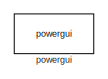
[diagram: root canvas - part 1/8, top left region]
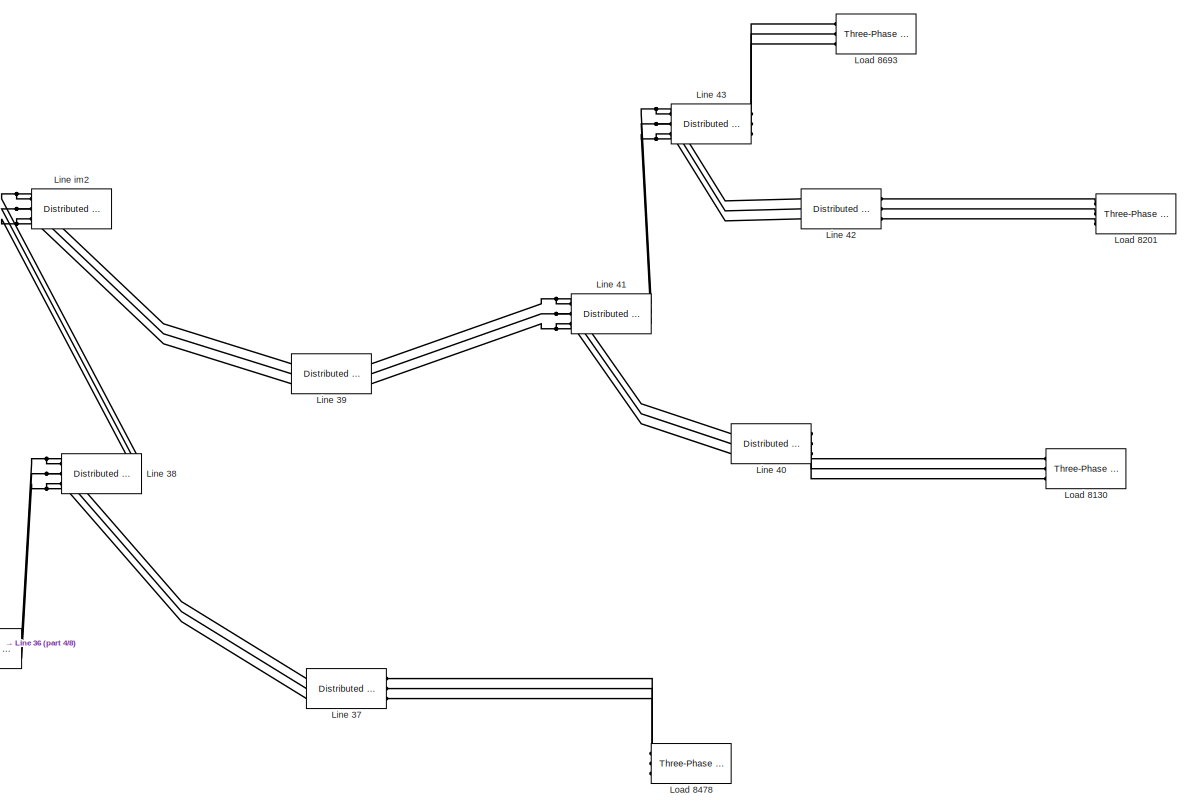
[diagram: root canvas - part 2/8, top center region]
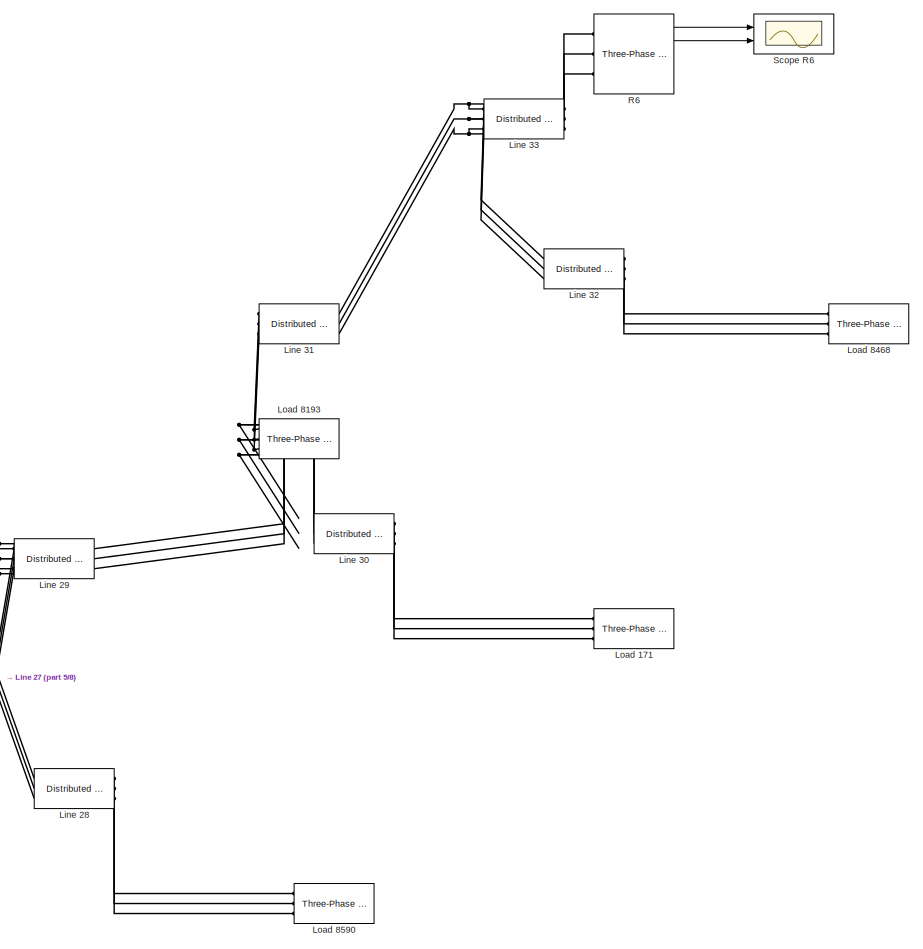
[diagram: root canvas - part 3/8, middle right region]
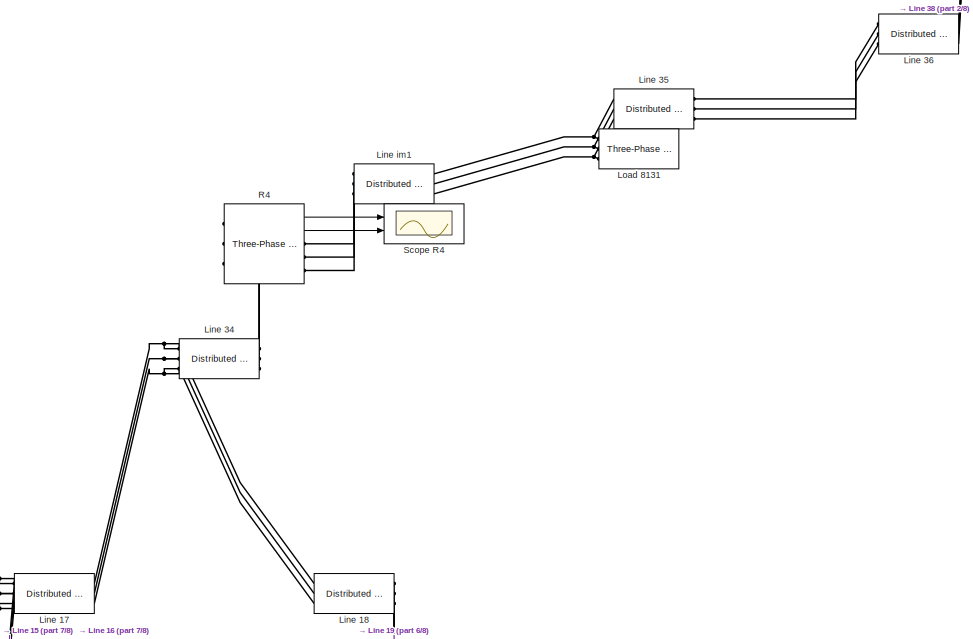
[diagram: root canvas - part 4/8, central region]
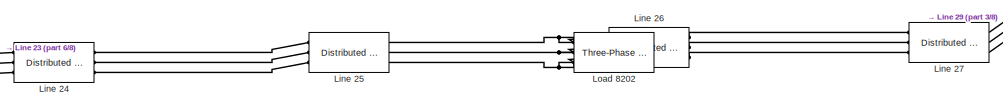
[diagram: root canvas - part 5/8, middle right region]
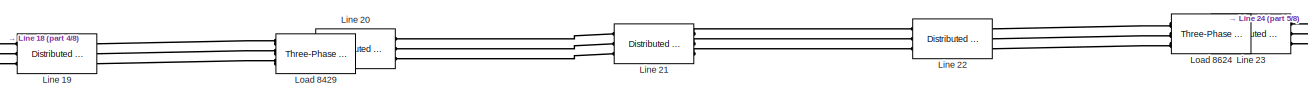
[diagram: root canvas - part 6/8, central region]
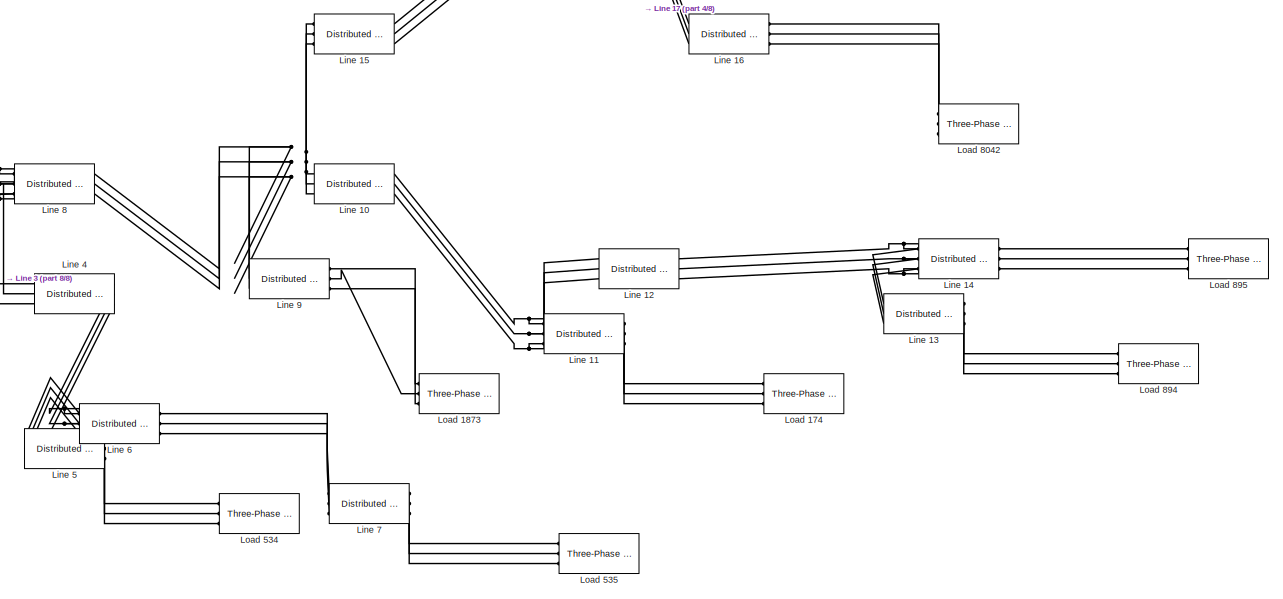
[diagram: root canvas - part 7/8, bottom left region]
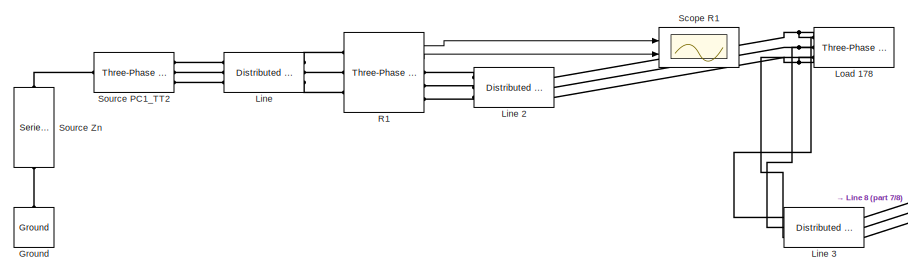
[diagram: root canvas - part 8/8, bottom left region]
MODEL slx_b86a20e5045c
KIND model
CONFIG AbsTol = auto
CONFIG EnableMultiTasking = off
CONFIG FixedStep = 0.2
CONFIG MaxStep = auto
CONFIG MinStep = auto
CONFIG RelTol = 1e-3
CONFIG SampleTimeConstraint = Unconstrained
CONFIG SolverName = FixedStepAuto
CONFIG StartTime = 0
CONFIG StopTime = 0.2
BLOCK [Reference] Ground  REF=spsGroundLib/Ground
  NameLocation = right
  Ports = [0, 0, 0, 0, 0, 1]
  SourceBlock = spsGroundLib/Ground
  SourceProductBaseCode = PS
  SourceType = Ground
BLOCK [Reference] Line  REF=spsDistributedParametersLineLib/Distributed Parameters Line
  Ports = [0, 0, 0, 0, 0, 3, 3]
  SourceBlock = spsDistributedParametersLineLib/Distributed Parameters Line
  SourceProductBaseCode = PS
  SourceType = Distributed Parameters Line
BLOCK [Reference] Line 10  REF=spsDistributedParametersLineLib/Distributed Parameters Line
  Ports = [0, 0, 0, 0, 0, 3, 3]
  SourceBlock = spsDistributedParametersLineLib/Distributed Parameters Line
  SourceProductBaseCode = PS
  SourceType = Distributed Parameters Line
BLOCK [Reference] Line 11  REF=spsDistributedParametersLineLib/Distributed Parameters Line
  Ports = [0, 0, 0, 0, 0, 3, 3]
  SourceBlock = spsDistributedParametersLineLib/Distributed Parameters Line
  SourceProductBaseCode = PS
  SourceType = Distributed Parameters Line
BLOCK [Reference] Line 12  REF=spsDistributedParametersLineLib/Distributed Parameters Line
  Ports = [0, 0, 0, 0, 0, 3, 3]
  SourceBlock = spsDistributedParametersLineLib/Distributed Parameters Line
  SourceProductBaseCode = PS
  SourceType = Distributed Parameters Line
BLOCK [Reference] Line 13  REF=spsDistributedParametersLineLib/Distributed Parameters Line
  Ports = [0, 0, 0, 0, 0, 3, 3]
  SourceBlock = spsDistributedParametersLineLib/Distributed Parameters Line
  SourceProductBaseCode = PS
  SourceType = Distributed Parameters Line
BLOCK [Reference] Line 14  REF=spsDistributedParametersLineLib/Distributed Parameters Line
  Ports = [0, 0, 0, 0, 0, 3, 3]
  SourceBlock = spsDistributedParametersLineLib/Distributed Parameters Line
  SourceProductBaseCode = PS
  SourceType = Distributed Parameters Line
BLOCK [Reference] Line 15  REF=spsDistributedParametersLineLib/Distributed Parameters Line
  Ports = [0, 0, 0, 0, 0, 3, 3]
  SourceBlock = spsDistributedParametersLineLib/Distributed Parameters Line
  SourceProductBaseCode = PS
  SourceType = Distributed Parameters Line
BLOCK [Reference] Line 16  REF=spsDistributedParametersLineLib/Distributed Parameters Line
  Ports = [0, 0, 0, 0, 0, 3, 3]
  SourceBlock = spsDistributedParametersLineLib/Distributed Parameters Line
  SourceProductBaseCode = PS
  SourceType = Distributed Parameters Line
BLOCK [Reference] Line 17  REF=spsDistributedParametersLineLib/Distributed Parameters Line
  Ports = [0, 0, 0, 0, 0, 3, 3]
  SourceBlock = spsDistributedParametersLineLib/Distributed Parameters Line
  SourceProductBaseCode = PS
  SourceType = Distributed Parameters Line
BLOCK [Reference] Line 18  REF=spsDistributedParametersLineLib/Distributed Parameters Line
  Ports = [0, 0, 0, 0, 0, 3, 3]
  SourceBlock = spsDistributedParametersLineLib/Distributed Parameters Line
  SourceProductBaseCode = PS
  SourceType = Distributed Parameters Line
BLOCK [Reference] Line 19  REF=spsDistributedParametersLineLib/Distributed Parameters Line
  Ports = [0, 0, 0, 0, 0, 3, 3]
  SourceBlock = spsDistributedParametersLineLib/Distributed Parameters Line
  SourceProductBaseCode = PS
  SourceType = Distributed Parameters Line
BLOCK [Reference] Line 2  REF=spsDistributedParametersLineLib/Distributed Parameters Line
  Ports = [0, 0, 0, 0, 0, 3, 3]
  SourceBlock = spsDistributedParametersLineLib/Distributed Parameters Line
  SourceProductBaseCode = PS
  SourceType = Distributed Parameters Line
BLOCK [Reference] Line 20  REF=spsDistributedParametersLineLib/Distributed Parameters Line
  Ports = [0, 0, 0, 0, 0, 3, 3]
  SourceBlock = spsDistributedParametersLineLib/Distributed Parameters Line
  SourceProductBaseCode = PS
  SourceType = Distributed Parameters Line
BLOCK [Reference] Line 21  REF=spsDistributedParametersLineLib/Distributed Parameters Line
  Ports = [0, 0, 0, 0, 0, 3, 3]
  SourceBlock = spsDistributedParametersLineLib/Distributed Parameters Line
  SourceProductBaseCode = PS
  SourceType = Distributed Parameters Line
BLOCK [Reference] Line 22  REF=spsDistributedParametersLineLib/Distributed Parameters Line
  Ports = [0, 0, 0, 0, 0, 3, 3]
  SourceBlock = spsDistributedParametersLineLib/Distributed Parameters Line
  SourceProductBaseCode = PS
  SourceType = Distributed Parameters Line
BLOCK [Reference] Line 23  REF=spsDistributedParametersLineLib/Distributed Parameters Line
  Ports = [0, 0, 0, 0, 0, 3, 3]
  SourceBlock = spsDistributedParametersLineLib/Distributed Parameters Line
  SourceProductBaseCode = PS
  SourceType = Distributed Parameters Line
BLOCK [Reference] Line 24  REF=spsDistributedParametersLineLib/Distributed Parameters Line
  Ports = [0, 0, 0, 0, 0, 3, 3]
  SourceBlock = spsDistributedParametersLineLib/Distributed Parameters Line
  SourceProductBaseCode = PS
  SourceType = Distributed Parameters Line
BLOCK [Reference] Line 25  REF=spsDistributedParametersLineLib/Distributed Parameters Line
  Ports = [0, 0, 0, 0, 0, 3, 3]
  SourceBlock = spsDistributedParametersLineLib/Distributed Parameters Line
  SourceProductBaseCode = PS
  SourceType = Distributed Parameters Line
BLOCK [Reference] Line 26  REF=spsDistributedParametersLineLib/Distributed Parameters Line
  Ports = [0, 0, 0, 0, 0, 3, 3]
  SourceBlock = spsDistributedParametersLineLib/Distributed Parameters Line
  SourceProductBaseCode = PS
  SourceType = Distributed Parameters Line
BLOCK [Reference] Line 27  REF=spsDistributedParametersLineLib/Distributed Parameters Line
  Ports = [0, 0, 0, 0, 0, 3, 3]
  SourceBlock = spsDistributedParametersLineLib/Distributed Parameters Line
  SourceProductBaseCode = PS
  SourceType = Distributed Parameters Line
BLOCK [Reference] Line 28  REF=spsDistributedParametersLineLib/Distributed Parameters Line
  Ports = [0, 0, 0, 0, 0, 3, 3]
  SourceBlock = spsDistributedParametersLineLib/Distributed Parameters Line
  SourceProductBaseCode = PS
  SourceType = Distributed Parameters Line
BLOCK [Reference] Line 29  REF=spsDistributedParametersLineLib/Distributed Parameters Line
  Ports = [0, 0, 0, 0, 0, 3, 3]
  SourceBlock = spsDistributedParametersLineLib/Distributed Parameters Line
  SourceProductBaseCode = PS
  SourceType = Distributed Parameters Line
BLOCK [Reference] Line 3  REF=spsDistributedParametersLineLib/Distributed Parameters Line
  Ports = [0, 0, 0, 0, 0, 3, 3]
  SourceBlock = spsDistributedParametersLineLib/Distributed Parameters Line
  SourceProductBaseCode = PS
  SourceType = Distributed Parameters Line
BLOCK [Reference] Line 30  REF=spsDistributedParametersLineLib/Distributed Parameters Line
  Ports = [0, 0, 0, 0, 0, 3, 3]
  SourceBlock = spsDistributedParametersLineLib/Distributed Parameters Line
  SourceProductBaseCode = PS
  SourceType = Distributed Parameters Line
BLOCK [Reference] Line 31  REF=spsDistributedParametersLineLib/Distributed Parameters Line
  Ports = [0, 0, 0, 0, 0, 3, 3]
  SourceBlock = spsDistributedParametersLineLib/Distributed Parameters Line
  SourceProductBaseCode = PS
  SourceType = Distributed Parameters Line
BLOCK [Reference] Line 32  REF=spsDistributedParametersLineLib/Distributed Parameters Line
  Ports = [0, 0, 0, 0, 0, 3, 3]
  SourceBlock = spsDistributedParametersLineLib/Distributed Parameters Line
  SourceProductBaseCode = PS
  SourceType = Distributed Parameters Line
BLOCK [Reference] Line 33  REF=spsDistributedParametersLineLib/Distributed Parameters Line
  Ports = [0, 0, 0, 0, 0, 3, 3]
  SourceBlock = spsDistributedParametersLineLib/Distributed Parameters Line
  SourceProductBaseCode = PS
  SourceType = Distributed Parameters Line
BLOCK [Reference] Line 34  REF=spsDistributedParametersLineLib/Distributed Parameters Line
  Ports = [0, 0, 0, 0, 0, 3, 3]
  SourceBlock = spsDistributedParametersLineLib/Distributed Parameters Line
  SourceProductBaseCode = PS
  SourceType = Distributed Parameters Line
BLOCK [Reference] Line 35  REF=spsDistributedParametersLineLib/Distributed Parameters Line
  Ports = [0, 0, 0, 0, 0, 3, 3]
  SourceBlock = spsDistributedParametersLineLib/Distributed Parameters Line
  SourceProductBaseCode = PS
  SourceType = Distributed Parameters Line
BLOCK [Reference] Line 36  REF=spsDistributedParametersLineLib/Distributed Parameters Line
  Ports = [0, 0, 0, 0, 0, 3, 3]
  SourceBlock = spsDistributedParametersLineLib/Distributed Parameters Line
  SourceProductBaseCode = PS
  SourceType = Distributed Parameters Line
BLOCK [Reference] Line 37  REF=spsDistributedParametersLineLib/Distributed Parameters Line
  Ports = [0, 0, 0, 0, 0, 3, 3]
  SourceBlock = spsDistributedParametersLineLib/Distributed Parameters Line
  SourceProductBaseCode = PS
  SourceType = Distributed Parameters Line
BLOCK [Reference] Line 38  REF=spsDistributedParametersLineLib/Distributed Parameters Line
  Ports = [0, 0, 0, 0, 0, 3, 3]
  SourceBlock = spsDistributedParametersLineLib/Distributed Parameters Line
  SourceProductBaseCode = PS
  SourceType = Distributed Parameters Line
BLOCK [Reference] Line 39  REF=spsDistributedParametersLineLib/Distributed Parameters Line
  Ports = [0, 0, 0, 0, 0, 3, 3]
  SourceBlock = spsDistributedParametersLineLib/Distributed Parameters Line
  SourceProductBaseCode = PS
  SourceType = Distributed Parameters Line
BLOCK [Reference] Line 4  REF=spsDistributedParametersLineLib/Distributed Parameters Line
  Ports = [0, 0, 0, 0, 0, 3, 3]
  SourceBlock = spsDistributedParametersLineLib/Distributed Parameters Line
  SourceProductBaseCode = PS
  SourceType = Distributed Parameters Line
BLOCK [Reference] Line 40  REF=spsDistributedParametersLineLib/Distributed Parameters Line
  Ports = [0, 0, 0, 0, 0, 3, 3]
  SourceBlock = spsDistributedParametersLineLib/Distributed Parameters Line
  SourceProductBaseCode = PS
  SourceType = Distributed Parameters Line
BLOCK [Reference] Line 41  REF=spsDistributedParametersLineLib/Distributed Parameters Line
  Ports = [0, 0, 0, 0, 0, 3, 3]
  SourceBlock = spsDistributedParametersLineLib/Distributed Parameters Line
  SourceProductBaseCode = PS
  SourceType = Distributed Parameters Line
BLOCK [Reference] Line 42  REF=spsDistributedParametersLineLib/Distributed Parameters Line
  Ports = [0, 0, 0, 0, 0, 3, 3]
  SourceBlock = spsDistributedParametersLineLib/Distributed Parameters Line
  SourceProductBaseCode = PS
  SourceType = Distributed Parameters Line
BLOCK [Reference] Line 43  REF=spsDistributedParametersLineLib/Distributed Parameters Line
  Ports = [0, 0, 0, 0, 0, 3, 3]
  SourceBlock = spsDistributedParametersLineLib/Distributed Parameters Line
  SourceProductBaseCode = PS
  SourceType = Distributed Parameters Line
BLOCK [Reference] Line 5  REF=spsDistributedParametersLineLib/Distributed Parameters Line
  Ports = [0, 0, 0, 0, 0, 3, 3]
  SourceBlock = spsDistributedParametersLineLib/Distributed Parameters Line
  SourceProductBaseCode = PS
  SourceType = Distributed Parameters Line
BLOCK [Reference] Line 6  REF=spsDistributedParametersLineLib/Distributed Parameters Line
  Ports = [0, 0, 0, 0, 0, 3, 3]
  SourceBlock = spsDistributedParametersLineLib/Distributed Parameters Line
  SourceProductBaseCode = PS
  SourceType = Distributed Parameters Line
BLOCK [Reference] Line 7  REF=spsDistributedParametersLineLib/Distributed Parameters Line
  Ports = [0, 0, 0, 0, 0, 3, 3]
  SourceBlock = spsDistributedParametersLineLib/Distributed Parameters Line
  SourceProductBaseCode = PS
  SourceType = Distributed Parameters Line
BLOCK [Reference] Line 8  REF=spsDistributedParametersLineLib/Distributed Parameters Line
  Ports = [0, 0, 0, 0, 0, 3, 3]
  SourceBlock = spsDistributedParametersLineLib/Distributed Parameters Line
  SourceProductBaseCode = PS
  SourceType = Distributed Parameters Line
BLOCK [Reference] Line 9  REF=spsDistributedParametersLineLib/Distributed Parameters Line
  Ports = [0, 0, 0, 0, 0, 3, 3]
  SourceBlock = spsDistributedParametersLineLib/Distributed Parameters Line
  SourceProductBaseCode = PS
  SourceType = Distributed Parameters Line
BLOCK [Reference] Line im1  REF=spsDistributedParametersLineLib/Distributed Parameters Line
  Ports = [0, 0, 0, 0, 0, 3, 3]
  SourceBlock = spsDistributedParametersLineLib/Distributed Parameters Line
  SourceProductBaseCode = PS
  SourceType = Distributed Parameters Line
BLOCK [Reference] Line im2  REF=spsDistributedParametersLineLib/Distributed Parameters Line
  Ports = [0, 0, 0, 0, 0, 3, 3]
  SourceBlock = spsDistributedParametersLineLib/Distributed Parameters Line
  SourceProductBaseCode = PS
  SourceType = Distributed Parameters Line
BLOCK [Reference] Load 171  REF=spsThreePhaseSeriesRLCLoadLib/Three-Phase
Series RLC Load
  AttributesFormatString = \n
  NameLocation = top
  Ports = [0, 0, 0, 0, 0, 3]
  SourceBlock = spsThreePhaseSeriesRLCLoadLib/Three-Phase\nSeries RLC Load
  SourceProductBaseCode = PS
  SourceType = Three-Phase Series RLC Load
BLOCK [Reference] Load 174  REF=spsThreePhaseSeriesRLCLoadLib/Three-Phase
Series RLC Load
  AttributesFormatString = \n
  NameLocation = top
  Ports = [0, 0, 0, 0, 0, 3]
  SourceBlock = spsThreePhaseSeriesRLCLoadLib/Three-Phase\nSeries RLC Load
  SourceProductBaseCode = PS
  SourceType = Three-Phase Series RLC Load
BLOCK [Reference] Load 178  REF=spsThreePhaseSeriesRLCLoadLib/Three-Phase
Series RLC Load
  AttributesFormatString = \n
  NameLocation = top
  Ports = [0, 0, 0, 0, 0, 3]
  SourceBlock = spsThreePhaseSeriesRLCLoadLib/Three-Phase\nSeries RLC Load
  SourceProductBaseCode = PS
  SourceType = Three-Phase Series RLC Load
BLOCK [Reference] Load 1873  REF=spsThreePhaseSeriesRLCLoadLib/Three-Phase
Series RLC Load
  AttributesFormatString = \n
  NameLocation = top
  Ports = [0, 0, 0, 0, 0, 3]
  SourceBlock = spsThreePhaseSeriesRLCLoadLib/Three-Phase\nSeries RLC Load
  SourceProductBaseCode = PS
  SourceType = Three-Phase Series RLC Load
BLOCK [Reference] Load 534  REF=spsThreePhaseSeriesRLCLoadLib/Three-Phase
Series RLC Load
  AttributesFormatString = \n
  NameLocation = top
  Ports = [0, 0, 0, 0, 0, 3]
  SourceBlock = spsThreePhaseSeriesRLCLoadLib/Three-Phase\nSeries RLC Load
  SourceProductBaseCode = PS
  SourceType = Three-Phase Series RLC Load
BLOCK [Reference] Load 535  REF=spsThreePhaseSeriesRLCLoadLib/Three-Phase
Series RLC Load
  AttributesFormatString = \n
  NameLocation = top
  Ports = [0, 0, 0, 0, 0, 3]
  SourceBlock = spsThreePhaseSeriesRLCLoadLib/Three-Phase\nSeries RLC Load
  SourceProductBaseCode = PS
  SourceType = Three-Phase Series RLC Load
BLOCK [Reference] Load 8042  REF=spsThreePhaseSeriesRLCLoadLib/Three-Phase
Series RLC Load
  AttributesFormatString = \n
  NameLocation = top
  Ports = [0, 0, 0, 0, 0, 3]
  SourceBlock = spsThreePhaseSeriesRLCLoadLib/Three-Phase\nSeries RLC Load
  SourceProductBaseCode = PS
  SourceType = Three-Phase Series RLC Load
BLOCK [Reference] Load 8130  REF=spsThreePhaseSeriesRLCLoadLib/Three-Phase
Series RLC Load
  AttributesFormatString = \n
  NameLocation = top
  Ports = [0, 0, 0, 0, 0, 3]
  SourceBlock = spsThreePhaseSeriesRLCLoadLib/Three-Phase\nSeries RLC Load
  SourceProductBaseCode = PS
  SourceType = Three-Phase Series RLC Load
BLOCK [Reference] Load 8131  REF=spsThreePhaseSeriesRLCLoadLib/Three-Phase
Series RLC Load
  AttributesFormatString = \n
  NameLocation = top
  Ports = [0, 0, 0, 0, 0, 3]
  SourceBlock = spsThreePhaseSeriesRLCLoadLib/Three-Phase\nSeries RLC Load
  SourceProductBaseCode = PS
  SourceType = Three-Phase Series RLC Load
BLOCK [Reference] Load 8193  REF=spsThreePhaseSeriesRLCLoadLib/Three-Phase
Series RLC Load
  AttributesFormatString = \n
  NameLocation = top
  Ports = [0, 0, 0, 0, 0, 3]
  SourceBlock = spsThreePhaseSeriesRLCLoadLib/Three-Phase\nSeries RLC Load
  SourceProductBaseCode = PS
  SourceType = Three-Phase Series RLC Load
BLOCK [Reference] Load 8201  REF=spsThreePhaseSeriesRLCLoadLib/Three-Phase
Series RLC Load
  AttributesFormatString = \n
  NameLocation = top
  Ports = [0, 0, 0, 0, 0, 3]
  SourceBlock = spsThreePhaseSeriesRLCLoadLib/Three-Phase\nSeries RLC Load
  SourceProductBaseCode = PS
  SourceType = Three-Phase Series RLC Load
BLOCK [Reference] Load 8202  REF=spsThreePhaseSeriesRLCLoadLib/Three-Phase
Series RLC Load
  AttributesFormatString = \n
  NameLocation = top
  Ports = [0, 0, 0, 0, 0, 3]
  SourceBlock = spsThreePhaseSeriesRLCLoadLib/Three-Phase\nSeries RLC Load
  SourceProductBaseCode = PS
  SourceType = Three-Phase Series RLC Load
BLOCK [Reference] Load 8429  REF=spsThreePhaseSeriesRLCLoadLib/Three-Phase
Series RLC Load
  AttributesFormatString = \n
  NameLocation = top
  Ports = [0, 0, 0, 0, 0, 3]
  SourceBlock = spsThreePhaseSeriesRLCLoadLib/Three-Phase\nSeries RLC Load
  SourceProductBaseCode = PS
  SourceType = Three-Phase Series RLC Load
BLOCK [Reference] Load 8468  REF=spsThreePhaseSeriesRLCLoadLib/Three-Phase
Series RLC Load
  AttributesFormatString = \n
  NameLocation = top
  Ports = [0, 0, 0, 0, 0, 3]
  SourceBlock = spsThreePhaseSeriesRLCLoadLib/Three-Phase\nSeries RLC Load
  SourceProductBaseCode = PS
  SourceType = Three-Phase Series RLC Load
BLOCK [Reference] Load 8478  REF=spsThreePhaseSeriesRLCLoadLib/Three-Phase
Series RLC Load
  AttributesFormatString = \n
  NameLocation = top
  Ports = [0, 0, 0, 0, 0, 3]
  SourceBlock = spsThreePhaseSeriesRLCLoadLib/Three-Phase\nSeries RLC Load
  SourceProductBaseCode = PS
  SourceType = Three-Phase Series RLC Load
BLOCK [Reference] Load 8590  REF=spsThreePhaseSeriesRLCLoadLib/Three-Phase
Series RLC Load
  AttributesFormatString = \n
  NameLocation = top
  Ports = [0, 0, 0, 0, 0, 3]
  SourceBlock = spsThreePhaseSeriesRLCLoadLib/Three-Phase\nSeries RLC Load
  SourceProductBaseCode = PS
  SourceType = Three-Phase Series RLC Load
BLOCK [Reference] Load 8624  REF=spsThreePhaseSeriesRLCLoadLib/Three-Phase
Series RLC Load
  AttributesFormatString = \n
  NameLocation = top
  Ports = [0, 0, 0, 0, 0, 3]
  SourceBlock = spsThreePhaseSeriesRLCLoadLib/Three-Phase\nSeries RLC Load
  SourceProductBaseCode = PS
  SourceType = Three-Phase Series RLC Load
BLOCK [Reference] Load 8693  REF=spsThreePhaseSeriesRLCLoadLib/Three-Phase
Series RLC Load
  AttributesFormatString = \n
  NameLocation = top
  Ports = [0, 0, 0, 0, 0, 3]
  SourceBlock = spsThreePhaseSeriesRLCLoadLib/Three-Phase\nSeries RLC Load
  SourceProductBaseCode = PS
  SourceType = Three-Phase Series RLC Load
BLOCK [Reference] Load 894  REF=spsThreePhaseSeriesRLCLoadLib/Three-Phase
Series RLC Load
  AttributesFormatString = \n
  NameLocation = top
  Ports = [0, 0, 0, 0, 0, 3]
  SourceBlock = spsThreePhaseSeriesRLCLoadLib/Three-Phase\nSeries RLC Load
  SourceProductBaseCode = PS
  SourceType = Three-Phase Series RLC Load
BLOCK [Reference] Load 895  REF=spsThreePhaseSeriesRLCLoadLib/Three-Phase
Series RLC Load
  AttributesFormatString = \n
  NameLocation = top
  Ports = [0, 0, 0, 0, 0, 3]
  SourceBlock = spsThreePhaseSeriesRLCLoadLib/Three-Phase\nSeries RLC Load
  SourceProductBaseCode = PS
  SourceType = Three-Phase Series RLC Load
BLOCK [Reference] R1  REF=spsThreePhaseVIMeasurementLib/Three-Phase
V-I Measurement
  Ports = [0, 2, 0, 0, 0, 3, 3]
  SourceBlock = spsThreePhaseVIMeasurementLib/Three-Phase\nV-I Measurement
  SourceProductBaseCode = PS
  SourceType = Three-Phase VI Measurement
BLOCK [Reference] R4  REF=spsThreePhaseVIMeasurementLib/Three-Phase
V-I Measurement
  Ports = [0, 2, 0, 0, 0, 3, 3]
  SourceBlock = spsThreePhaseVIMeasurementLib/Three-Phase\nV-I Measurement
  SourceProductBaseCode = PS
  SourceType = Three-Phase VI Measurement
BLOCK [Reference] R6  REF=spsThreePhaseVIMeasurementLib/Three-Phase
V-I Measurement
  Ports = [0, 2, 0, 0, 0, 3, 3]
  SourceBlock = spsThreePhaseVIMeasurementLib/Three-Phase\nV-I Measurement
  SourceProductBaseCode = PS
  SourceType = Three-Phase VI Measurement
BLOCK [Scope] Scope R1
  Floating = off
  NumInputPorts = 2
  Ports = [2]
  ScopeSpecificationString = Simulink.scopes.TimeScopeBlockCfg('CurrentConfiguration', extmgr.ConfigurationSet(extmgr.Configuration('Core','General UI',true),extmgr.Configuration('Core','Source UI',true),extmgr.Configuration('Sources','WiredSimulink',true,'DataLogging',true,'DataLoggingSaveFormat','StructureWithTime','DataLoggingVariableName','ScopeData75'),extmgr.Configuration('Visuals','Time Domain',true,'SerializedDisplays...<+1736ch>
BLOCK [Scope] Scope R4
  Floating = off
  NumInputPorts = 2
  Ports = [2]
  ScopeSpecificationString = Simulink.scopes.TimeScopeBlockCfg('CurrentConfiguration', extmgr.ConfigurationSet(extmgr.Configuration('Core','General UI',true),extmgr.Configuration('Core','Source UI',true),extmgr.Configuration('Sources','WiredSimulink',true,'DataLogging',true,'DataLoggingSaveFormat','StructureWithTime','DataLoggingVariableName','ScopeData72'),extmgr.Configuration('Visuals','Time Domain',true,'SerializedDisplays...<+1683ch>
BLOCK [Scope] Scope R6
  Floating = off
  NumInputPorts = 2
  Ports = [2]
  ScopeSpecificationString = Simulink.scopes.TimeScopeBlockCfg('CurrentConfiguration', extmgr.ConfigurationSet(extmgr.Configuration('Core','General UI',true),extmgr.Configuration('Core','Source UI',true),extmgr.Configuration('Sources','WiredSimulink',true,'DataLogging',true,'DataLoggingSaveFormat','StructureWithTime','DataLoggingVariableName','ScopeData49'),extmgr.Configuration('Visuals','Time Domain',true,'SerializedDisplays...<+1683ch>
BLOCK [Reference] Source PC1_TT2  REF=spsThreePhaseSourceLib/Three-Phase Source
  Ports = [0, 0, 0, 0, 0, 1, 3]
  SourceBlock = spsThreePhaseSourceLib/Three-Phase Source
  SourceProductBaseCode = PS
  SourceType = Three-Phase Source
BLOCK [Reference] Source Zn  REF=spsSeriesRLCBranchLib/Series RLC Branch
  NameLocation = right
  Ports = [0, 0, 0, 0, 0, 1, 1]
  SourceBlock = spsSeriesRLCBranchLib/Series RLC Branch
  SourceProductBaseCode = PS
  SourceType = Series RLC Branch
BLOCK [Reference] powergui  REF=spspowerguiLib/powergui
  Ports = []
  Priority = 1
  SourceBlock = spspowerguiLib/powergui
  SourceProductBaseCode = PS
  SourceType = PSB option menu block
LINE R1:1 -> Scope R1:1
LINE R1:2 -> Scope R1:2
LINE R4:1 -> Scope R4:1
LINE R4:2 -> Scope R4:2
LINE R6:1 -> Scope R6:1
LINE R6:2 -> Scope R6:2
PLINE Ground:LConn1 -- Source Zn:LConn1
PNET net1: Line 10:LConn1 -- Line 15:LConn1 -- Line 8:RConn1 -- Line 9:LConn1
PNET net2: Line 10:LConn2 -- Line 15:LConn2 -- Line 8:RConn2 -- Line 9:LConn2
PNET net3: Line 10:LConn3 -- Line 15:LConn3 -- Line 8:RConn3 -- Line 9:LConn3
PNET net4: Line 10:RConn1 -- Line 11:LConn1 -- Line 12:LConn1
PNET net5: Line 10:RConn2 -- Line 11:LConn2 -- Line 12:LConn2
PNET net6: Line 10:RConn3 -- Line 11:LConn3 -- Line 12:LConn3
PLINE Line 11:RConn1 -- Load 174:LConn1
PLINE Line 11:RConn2 -- Load 174:LConn2
PLINE Line 11:RConn3 -- Load 174:LConn3
PNET net7: Line 12:RConn1 -- Line 13:LConn1 -- Line 14:LConn1
PNET net8: Line 12:RConn2 -- Line 13:LConn2 -- Line 14:LConn2
PNET net9: Line 12:RConn3 -- Line 13:LConn3 -- Line 14:LConn3
PLINE Line 13:RConn1 -- Load 894:LConn1
PLINE Line 13:RConn2 -- Load 894:LConn2
PLINE Line 13:RConn3 -- Load 894:LConn3
PLINE Line 14:RConn1 -- Load 895:LConn1
PLINE Line 14:RConn2 -- Load 895:LConn2
PLINE Line 14:RConn3 -- Load 895:LConn3
PNET net10: Line 15:RConn1 -- Line 16:LConn1 -- Line 17:LConn1
PNET net11: Line 15:RConn2 -- Line 16:LConn2 -- Line 17:LConn2
PNET net12: Line 15:RConn3 -- Line 16:LConn3 -- Line 17:LConn3
PLINE Line 16:RConn1 -- Load 8042:LConn1
PLINE Line 16:RConn2 -- Load 8042:LConn2
PLINE Line 16:RConn3 -- Load 8042:LConn3
PNET net13: Line 17:RConn1 -- Line 18:LConn1 -- Line 34:LConn1
PNET net14: Line 17:RConn2 -- Line 18:LConn2 -- Line 34:LConn2
PNET net15: Line 17:RConn3 -- Line 18:LConn3 -- Line 34:LConn3
PLINE Line 18:RConn1 -- Line 19:LConn1
PLINE Line 18:RConn2 -- Line 19:LConn2
PLINE Line 18:RConn3 -- Line 19:LConn3
PNET net16: Line 19:RConn1 -- Line 20:LConn1 -- Load 8429:LConn1
PNET net17: Line 19:RConn2 -- Line 20:LConn2 -- Load 8429:LConn2
PNET net18: Line 19:RConn3 -- Line 20:LConn3 -- Load 8429:LConn3
PLINE Line 20:RConn1 -- Line 21:LConn1
PLINE Line 20:RConn2 -- Line 21:LConn2
PLINE Line 20:RConn3 -- Line 21:LConn3
PLINE Line 21:RConn1 -- Line 22:LConn1
PLINE Line 21:RConn2 -- Line 22:LConn2
PLINE Line 21:RConn3 -- Line 22:LConn3
PNET net19: Line 22:RConn1 -- Line 23:LConn1 -- Load 8624:LConn1
PNET net20: Line 22:RConn2 -- Line 23:LConn2 -- Load 8624:LConn2
PNET net21: Line 22:RConn3 -- Line 23:LConn3 -- Load 8624:LConn3
PLINE Line 23:RConn1 -- Line 24:LConn1
PLINE Line 23:RConn2 -- Line 24:LConn2
PLINE Line 23:RConn3 -- Line 24:LConn3
PLINE Line 24:RConn1 -- Line 25:LConn1
PLINE Line 24:RConn2 -- Line 25:LConn2
PLINE Line 24:RConn3 -- Line 25:LConn3
PNET net22: Line 25:RConn1 -- Line 26:LConn1 -- Load 8202:LConn1
PNET net23: Line 25:RConn2 -- Line 26:LConn2 -- Load 8202:LConn2
PNET net24: Line 25:RConn3 -- Line 26:LConn3 -- Load 8202:LConn3
PLINE Line 26:RConn1 -- Line 27:LConn1
PLINE Line 26:RConn2 -- Line 27:LConn2
PLINE Line 26:RConn3 -- Line 27:LConn3
PNET net25: Line 27:RConn1 -- Line 28:LConn1 -- Line 29:LConn1
PNET net26: Line 27:RConn2 -- Line 28:LConn2 -- Line 29:LConn2
PNET net27: Line 27:RConn3 -- Line 28:LConn3 -- Line 29:LConn3
PLINE Line 28:RConn1 -- Load 8590:LConn1
PLINE Line 28:RConn2 -- Load 8590:LConn2
PLINE Line 28:RConn3 -- Load 8590:LConn3
PNET net28: Line 29:RConn1 -- Line 30:LConn1 -- Line 31:LConn1 -- Load 8193:LConn1
PNET net29: Line 29:RConn2 -- Line 30:LConn2 -- Line 31:LConn2 -- Load 8193:LConn2
PNET net30: Line 29:RConn3 -- Line 30:LConn3 -- Line 31:LConn3 -- Load 8193:LConn3
PLINE Line 2:LConn1 -- R1:RConn1
PLINE Line 2:LConn2 -- R1:RConn2
PLINE Line 2:LConn3 -- R1:RConn3
PNET net31: Line 2:RConn1 -- Line 3:LConn1 -- Load 178:LConn1
PNET net32: Line 2:RConn2 -- Line 3:LConn2 -- Load 178:LConn2
PNET net33: Line 2:RConn3 -- Line 3:LConn3 -- Load 178:LConn3
PLINE Line 30:RConn1 -- Load 171:LConn1
PLINE Line 30:RConn2 -- Load 171:LConn2
PLINE Line 30:RConn3 -- Load 171:LConn3
PNET net34: Line 31:RConn1 -- Line 32:LConn1 -- Line 33:LConn1
PNET net35: Line 31:RConn2 -- Line 32:LConn2 -- Line 33:LConn2
PNET net36: Line 31:RConn3 -- Line 32:LConn3 -- Line 33:LConn3
PLINE Line 32:RConn1 -- Load 8468:LConn1
PLINE Line 32:RConn2 -- Load 8468:LConn2
PLINE Line 32:RConn3 -- Load 8468:LConn3
PLINE Line 33:RConn1 -- R6:LConn1
PLINE Line 33:RConn2 -- R6:LConn2
PLINE Line 33:RConn3 -- R6:LConn3
PLINE Line 34:RConn1 -- R4:LConn1
PLINE Line 34:RConn2 -- R4:LConn2
PLINE Line 34:RConn3 -- R4:LConn3
PNET net37: Line 35:LConn1 -- Line im1:RConn1 -- Load 8131:LConn1
PNET net38: Line 35:LConn2 -- Line im1:RConn2 -- Load 8131:LConn2
PNET net39: Line 35:LConn3 -- Line im1:RConn3 -- Load 8131:LConn3
PLINE Line 35:RConn1 -- Line 36:LConn1
PLINE Line 35:RConn2 -- Line 36:LConn2
PLINE Line 35:RConn3 -- Line 36:LConn3
PNET net40: Line 36:RConn1 -- Line 37:LConn1 -- Line 38:LConn1
PNET net41: Line 36:RConn2 -- Line 37:LConn2 -- Line 38:LConn2
PNET net42: Line 36:RConn3 -- Line 37:LConn3 -- Line 38:LConn3
PLINE Line 37:RConn1 -- Load 8478:LConn1
PLINE Line 37:RConn2 -- Load 8478:LConn2
PLINE Line 37:RConn3 -- Load 8478:LConn3
PNET net43: Line 38:RConn1 -- Line 39:LConn1 -- Line im2:LConn1
PNET net44: Line 38:RConn2 -- Line 39:LConn2 -- Line im2:LConn2
PNET net45: Line 38:RConn3 -- Line 39:LConn3 -- Line im2:LConn3
PNET net46: Line 39:RConn1 -- Line 40:LConn1 -- Line 41:LConn1
PNET net47: Line 39:RConn2 -- Line 40:LConn2 -- Line 41:LConn2
PNET net48: Line 39:RConn3 -- Line 40:LConn3 -- Line 41:LConn3
PNET net49: Line 3:RConn1 -- Line 4:LConn1 -- Line 8:LConn1
PNET net50: Line 3:RConn2 -- Line 4:LConn2 -- Line 8:LConn2
PNET net51: Line 3:RConn3 -- Line 4:LConn3 -- Line 8:LConn3
PLINE Line 40:RConn1 -- Load 8130:LConn1
PLINE Line 40:RConn2 -- Load 8130:LConn2
PLINE Line 40:RConn3 -- Load 8130:LConn3
PNET net52: Line 41:RConn1 -- Line 42:LConn1 -- Line 43:LConn1
PNET net53: Line 41:RConn2 -- Line 42:LConn2 -- Line 43:LConn2
PNET net54: Line 41:RConn3 -- Line 42:LConn3 -- Line 43:LConn3
PLINE Line 42:RConn1 -- Load 8201:LConn1
PLINE Line 42:RConn2 -- Load 8201:LConn2
PLINE Line 42:RConn3 -- Load 8201:LConn3
PLINE Line 43:RConn1 -- Load 8693:LConn1
PLINE Line 43:RConn2 -- Load 8693:LConn2
PLINE Line 43:RConn3 -- Load 8693:LConn3
PNET net55: Line 4:RConn1 -- Line 5:LConn1 -- Line 6:LConn1
PNET net56: Line 4:RConn2 -- Line 5:LConn2 -- Line 6:LConn2
PNET net57: Line 4:RConn3 -- Line 5:LConn3 -- Line 6:LConn3
PLINE Line 5:RConn1 -- Load 534:LConn1
PLINE Line 5:RConn2 -- Load 534:LConn2
PLINE Line 5:RConn3 -- Load 534:LConn3
PLINE Line 6:RConn1 -- Line 7:LConn1
PLINE Line 6:RConn2 -- Line 7:LConn2
PLINE Line 6:RConn3 -- Line 7:LConn3
PLINE Line 7:RConn1 -- Load 535:LConn1
PLINE Line 7:RConn2 -- Load 535:LConn2
PLINE Line 7:RConn3 -- Load 535:LConn3
PLINE Line 9:RConn1 -- Load 1873:LConn1
PLINE Line 9:RConn2 -- Load 1873:LConn2
PLINE Line 9:RConn3 -- Load 1873:LConn3
PLINE Line im1:LConn1 -- R4:RConn1
PLINE Line im1:LConn2 -- R4:RConn2
PLINE Line im1:LConn3 -- R4:RConn3
PLINE Line:LConn1 -- Source PC1_TT2:RConn1
PLINE Line:LConn2 -- Source PC1_TT2:RConn2
PLINE Line:LConn3 -- Source PC1_TT2:RConn3
PLINE Line:RConn1 -- R1:LConn1
PLINE Line:RConn2 -- R1:LConn2
PLINE Line:RConn3 -- R1:LConn3
PLINE Source PC1_TT2:LConn1 -- Source Zn:RConn1
note: PNET lines group multi-terminal physical nets as a canonical sorted terminal list (undirected conserving connections); 2-terminal nets keep the pairwise PLINE form
